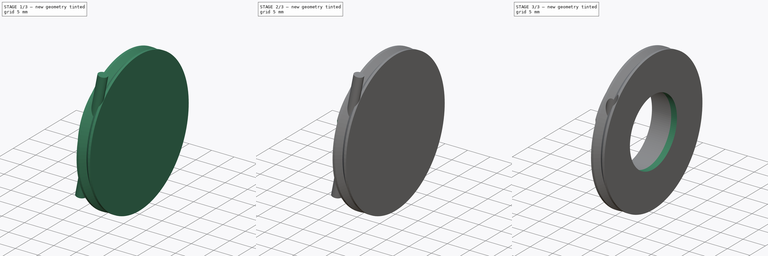
[diagram: build sequence overview — one tinted view per stage of 3, left to right]
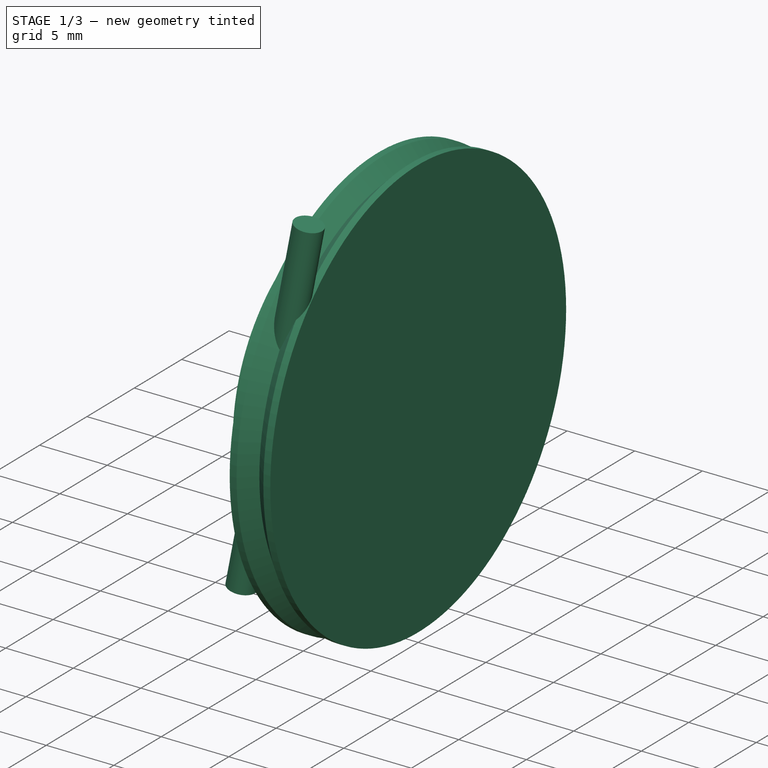
[diagram: stage 1 of 3 — iso view after this stage's code; geometry added in this stage tinted green]
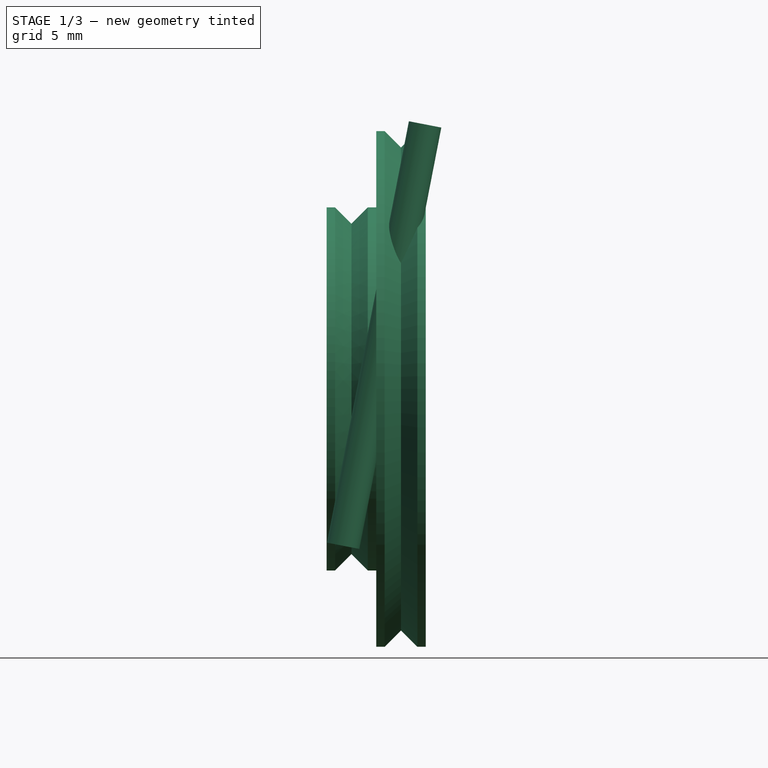
[diagram: stage 1 of 3 — front view after this stage's code; geometry added in this stage tinted green]
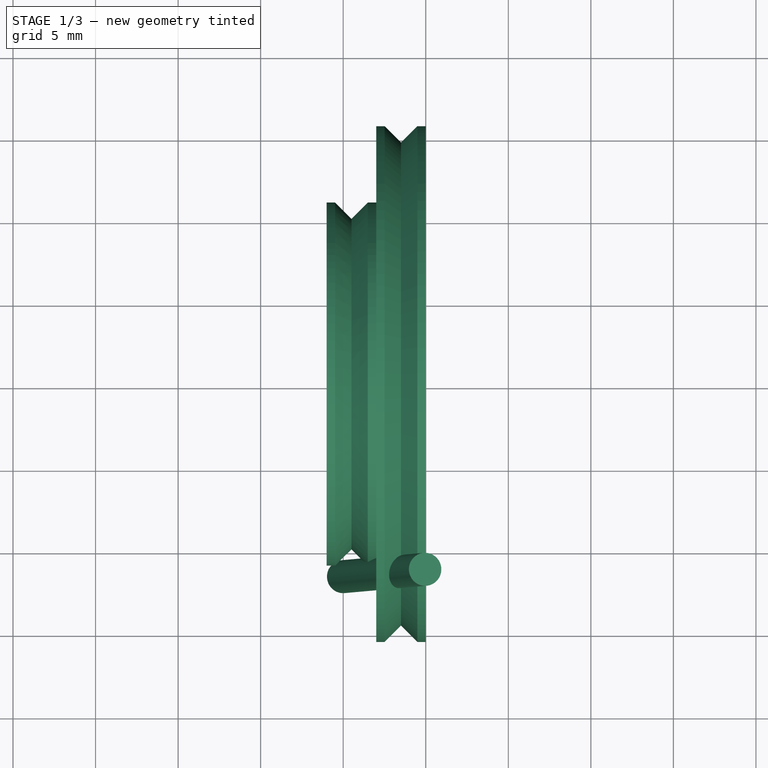
[diagram: stage 1 of 3 — top view after this stage's code; geometry added in this stage tinted green]
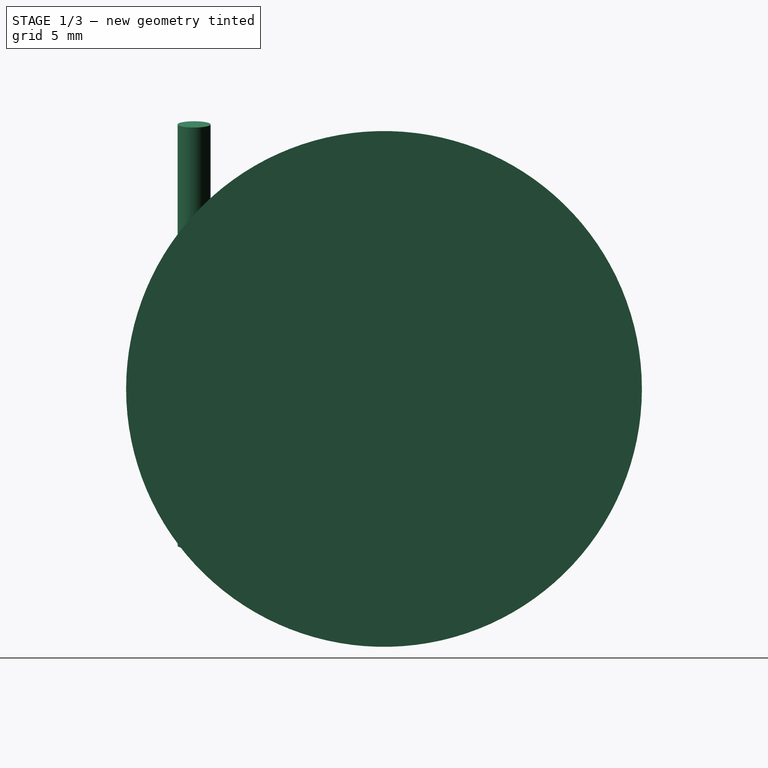
[diagram: stage 1 of 3 — right view after this stage's code; geometry added in this stage tinted green]
FCSTD DOCUMENT  (FreeCAD 0.16R)
Label: hackpan01
License: All rights reserved
LicenseURL: http://en.wikipedia.org/wiki/All_rights_reserved
objects: Sketcher::SketchObject×4, PartDesign::Pocket×3, PartDesign::Revolution×1, Part::Cylinder×1, Part::Cut×1
note: 14 computed .brp shape members not serialized (recipe doc carries the construction recipe); baked Part::Feature solids carry a one-line shape summary decoded from their .brp

FEATURE [Sketcher::SketchObject] Sketch
  sketch-geometry (12):
    g0: LineSegment StartX=-6 StartY=0 StartZ=0 EndX=-6 EndY=11 EndZ=0
    g1: LineSegment StartX=-6 StartY=11 StartZ=0 EndX=-5.48995 EndY=11 EndZ=0
    g2: LineSegment StartX=-5.48995 StartY=11 StartZ=0 EndX=-4.5 EndY=10.0101 EndZ=0
    g3: LineSegment StartX=-4.5 StartY=10.0101 StartZ=0 EndX=-3.51005 EndY=11 EndZ=0
    g4: LineSegment StartX=-3.51005 StartY=11 StartZ=0 EndX=-3 EndY=11 EndZ=0
    g5: LineSegment StartX=-3 StartY=11 StartZ=0 EndX=-3 EndY=15.62 EndZ=0
    g6: LineSegment StartX=-3 StartY=15.62 StartZ=0 EndX=-2.48995 EndY=15.62 EndZ=0
    g7: LineSegment StartX=-2.48995 StartY=15.62 StartZ=0 EndX=-1.5 EndY=14.6301 EndZ=0
    g8: LineSegment StartX=-1.5 StartY=14.6301 StartZ=0 EndX=-0.510051 EndY=15.62 EndZ=0
    g9: LineSegment StartX=-0.510051 StartY=15.62 StartZ=0 EndX=0 EndY=15.62 EndZ=0
    g10: LineSegment StartX=0 StartY=15.62 StartZ=0 EndX=0 EndY=0 EndZ=0
    g11: LineSegment StartX=0 StartY=0 StartZ=0 EndX=-6 EndY=0 EndZ=0
  constraints (36):
    c: PointOnObject(g0,g-1)
    c: Vertical(g0)
    c: Coincident(g0,g1)
    c: Coincident(g1,g2)
    c: Coincident(g2,g3)
    c: Coincident(g3,g4)
    c: Horizontal(g4)
    c: Coincident(g4,g5)
    c: Coincident(g5,g6)
    c: Coincident(g6,g7)
    c: Coincident(g7,g8)
    c: Coincident(g8,g9)
    c: Coincident(g9,g10)
    c: PointOnObject(g10,g-1)
    c: Coincident(g10,g11)
    c: Coincident(g11,g0)
    c: Vertical(g10)
    c: Equal(g1,g4)
    c: Equal(g4,g6)
    c: Equal(g6,g9)
    c: Vertical(g5)
    c: Equal(g2,g3)
    c: Equal(g3,g7)
    c: Equal(g7,g8)
    c: Horizontal(g1)
    c: Horizontal(g6)
    c: Angle(g3) = 0.785398
    c: Angle(g8) = 0.785398
    c: Horizontal(g9)
    c: Angle(g2) = -0.785398
    c: Angle(g7) = -0.785398
    c: Distance(g2) = 1.4
    c: Distance(g11) = 6
    c: Coincident(g10,g-1)
    c: Distance(g10) = 15.62
    c: Distance(g0) = 11
FEATURE [PartDesign::Revolution] Revolution
  Angle = 360
  Axis = (1,0,0)
  Base = (0,0,0)
  ReferenceAxis = -> Sketch [H_Axis]
  Sketch = -> Sketch
FEATURE [Part::Cylinder] Cylinder
  Angle = 360
  Height = 26
  Placement = pos=(-5,-11.5,-9.5) rot=(0,1,0;0.191986rad)
  Radius = 1
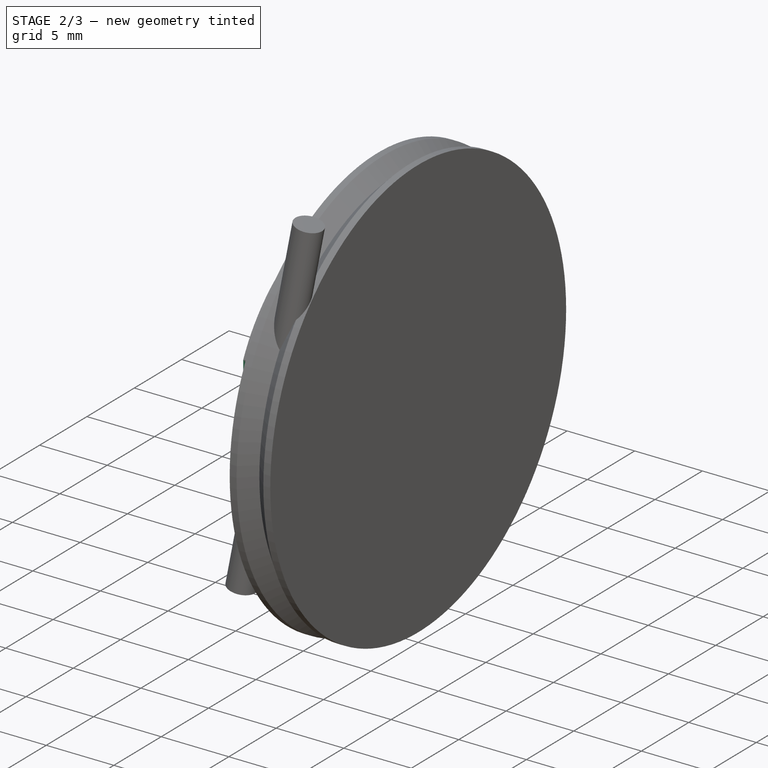
[diagram: stage 2 of 3 — iso view after this stage's code; geometry added in this stage tinted green]
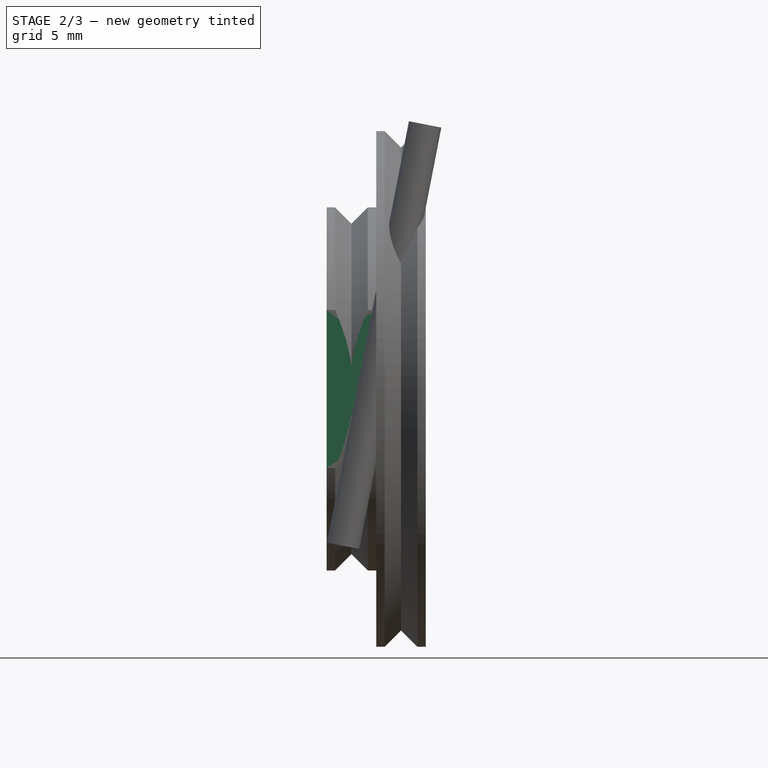
[diagram: stage 2 of 3 — front view after this stage's code; geometry added in this stage tinted green]
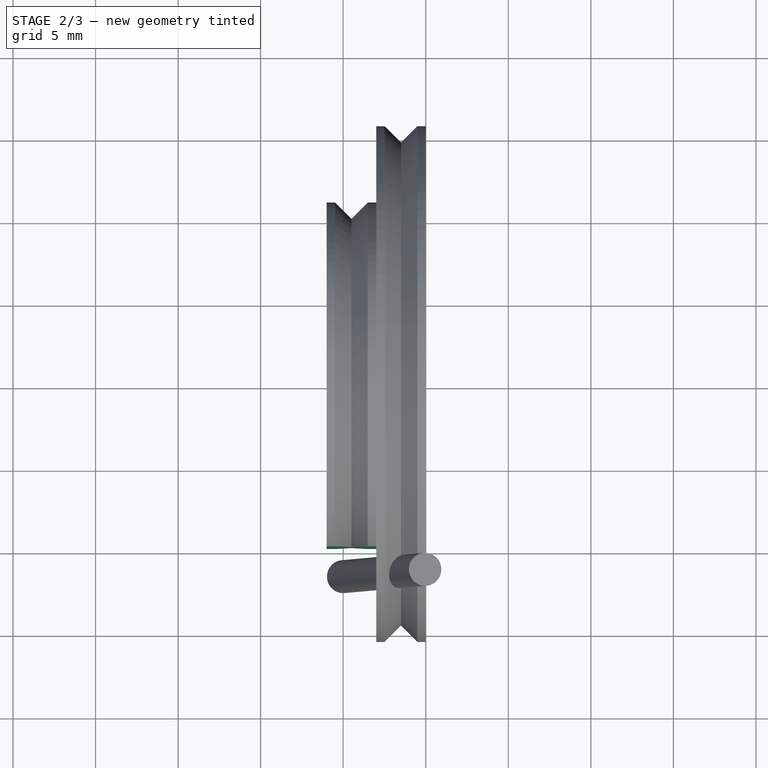
[diagram: stage 2 of 3 — top view after this stage's code; geometry added in this stage tinted green]
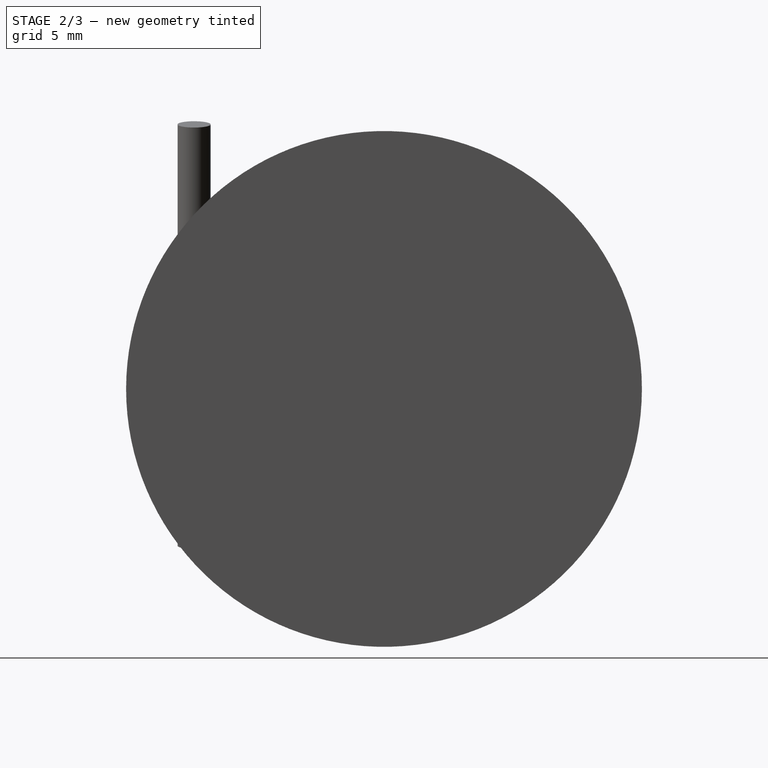
[diagram: stage 2 of 3 — right view after this stage's code; geometry added in this stage tinted green]
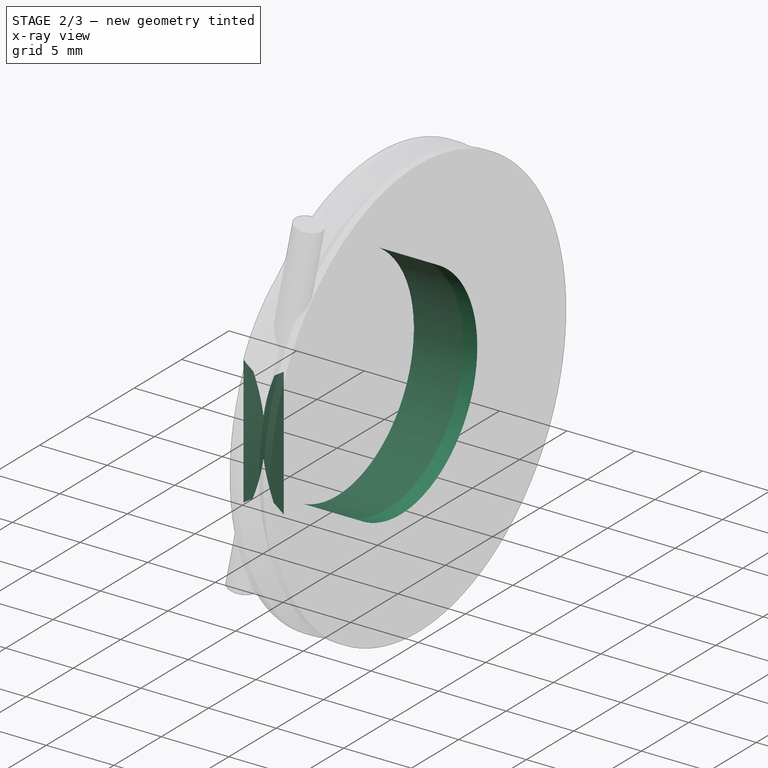
[diagram: stage 2 of 3 — x-ray composite at the iso view; earlier geometry ghosted, this stage's added geometry solid]
FEATURE [Sketcher::SketchObject] Sketch001
  Placement = pos=(-6,0,0) rot=(0.57735,-0.57735,-0.57735;2.0944rad)
  Support = -> Revolution [Face1]
  sketch-geometry (4):
    g0: LineSegment StartX=9.90768 StartY=5.08053 StartZ=0 EndX=11.7687 EndY=5.08053 EndZ=0
    g1: LineSegment StartX=11.7687 StartY=5.08053 StartZ=0 EndX=11.7687 EndY=-5.46531 EndZ=0
    g2: LineSegment StartX=11.7687 StartY=-5.46531 StartZ=0 EndX=9.90768 EndY=-5.46531 EndZ=0
    g3: LineSegment StartX=9.90768 StartY=-5.46531 StartZ=0 EndX=9.90768 EndY=5.08053 EndZ=0
  constraints (8):
    c: Coincident(g0,g1)
    c: Coincident(g1,g2)
    c: Coincident(g2,g3)
    c: Coincident(g3,g0)
    c: Horizontal(g0)
    c: Horizontal(g2)
    c: Vertical(g1)
    c: Vertical(g3)
FEATURE [PartDesign::Pocket] Pocket
  Length = 3
  Sketch = -> Sketch001
  Type = 0
FEATURE [Sketcher::SketchObject] Sketch002
  Placement = pos=(-6,0,0) rot=(0.57735,-0.57735,-0.57735;2.0944rad)
  Support = -> Pocket [Face1]
  sketch-geometry (1):
    g0: Circle CenterX=0 CenterY=0 CenterZ=0 NormalX=0 NormalY=0 NormalZ=1 Radius=8.1
  constraints (2):
    c: Radius(g0) = 8.1
    c: Coincident(g0,g-1)
FEATURE [PartDesign::Pocket] Pocket001
  Length = 4.7
  Sketch = -> Sketch002
  Type = 0
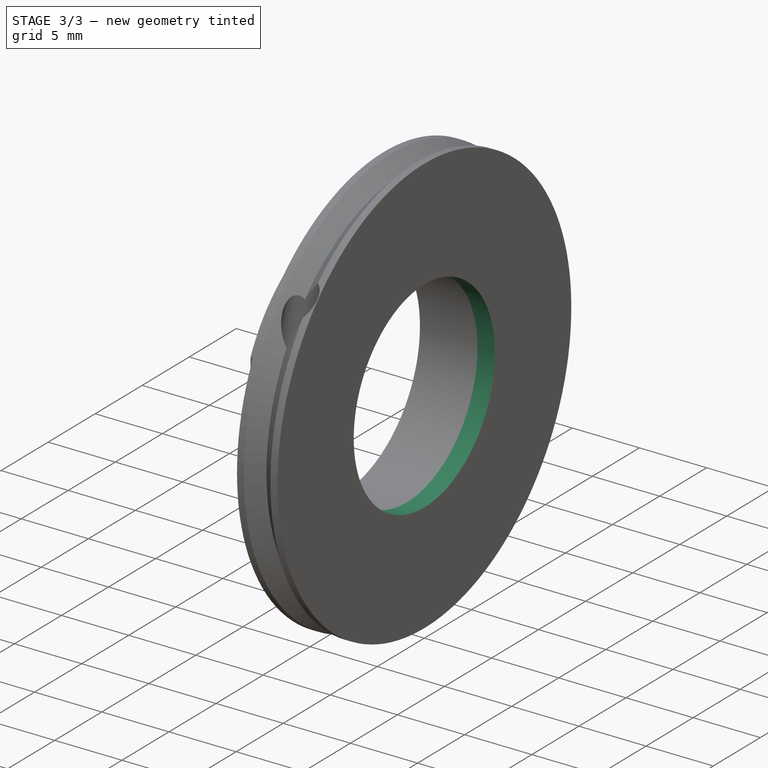
[diagram: stage 3 of 3 — iso view after this stage's code; geometry added in this stage tinted green]
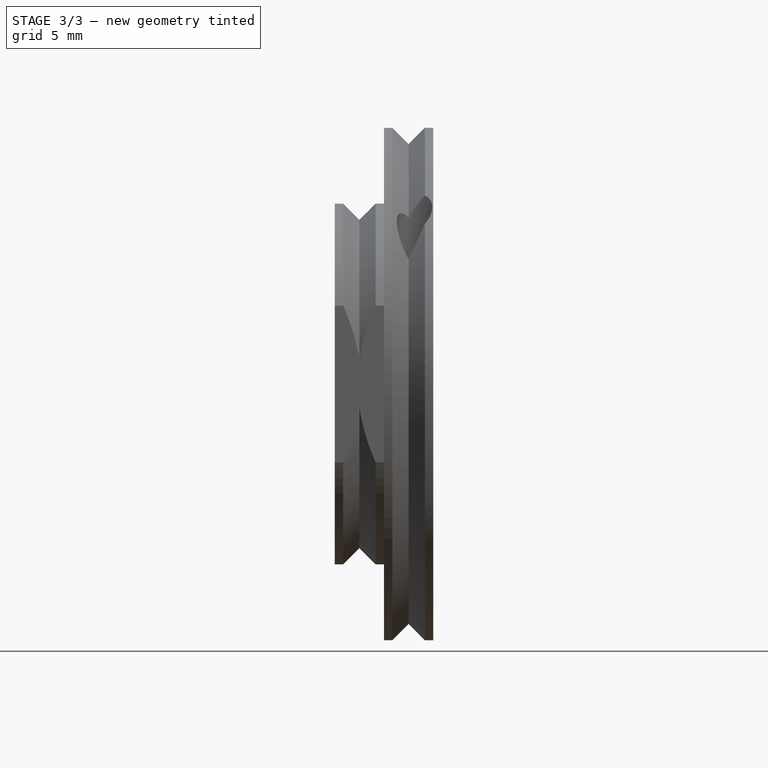
[diagram: stage 3 of 3 — front view after this stage's code; geometry added in this stage tinted green]
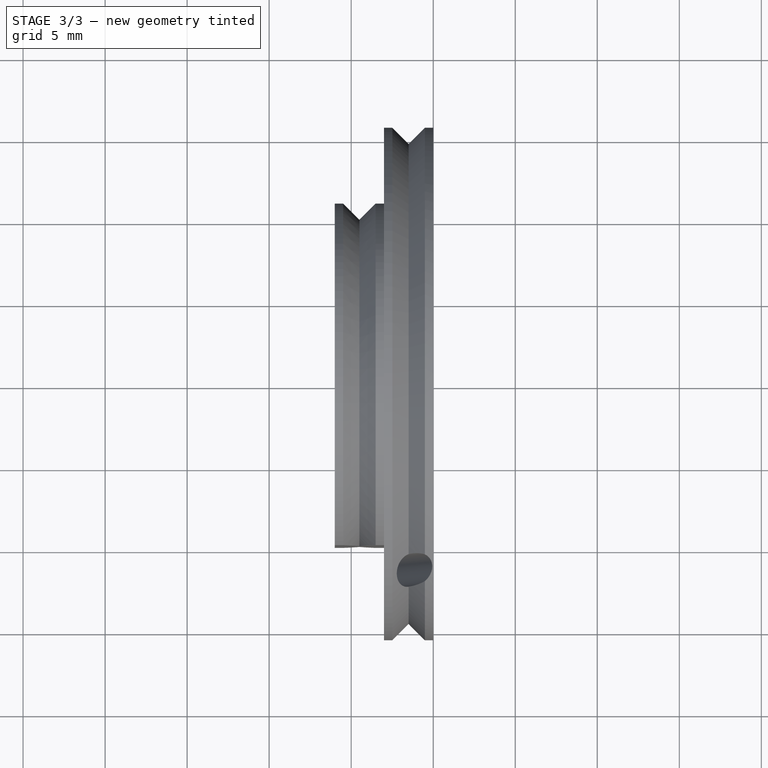
[diagram: stage 3 of 3 — top view after this stage's code; geometry added in this stage tinted green]
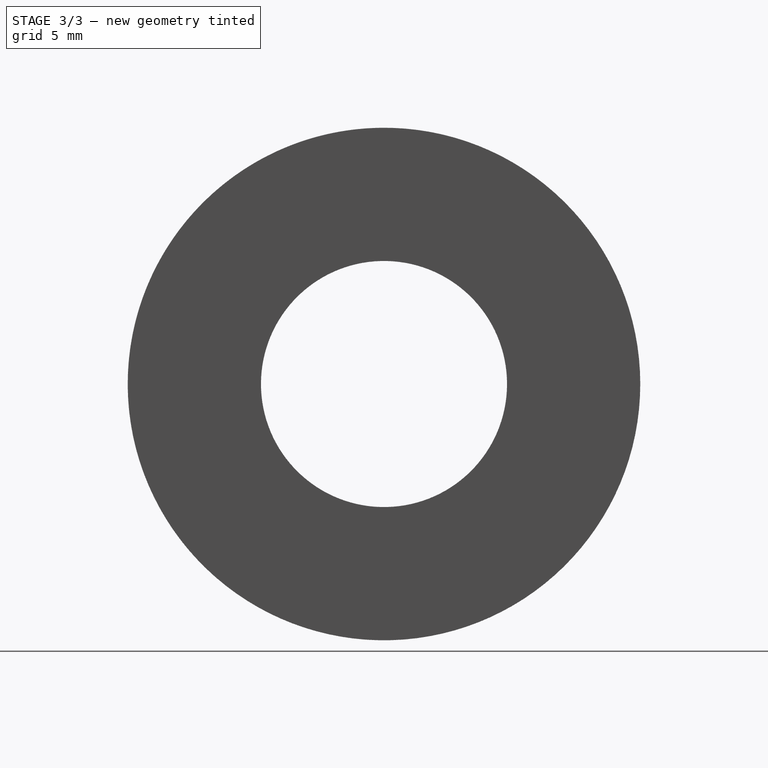
[diagram: stage 3 of 3 — right view after this stage's code; geometry added in this stage tinted green]
FEATURE [Sketcher::SketchObject] Sketch003
  Placement = pos=(-1.3,0,0) rot=(0.57735,-0.57735,-0.57735;2.0944rad)
  Support = -> Pocket001 [Face13]
  sketch-geometry (1):
    g0: Circle CenterX=0 CenterY=0 CenterZ=0 NormalX=0 NormalY=0 NormalZ=1 Radius=7.5
  constraints (2):
    c: Coincident(g0,g-1)
    c: Radius(g0) = 7.5
FEATURE [PartDesign::Pocket] Pocket002
  Length = 5
  Sketch = -> Sketch003
  Type = 0
FEATURE [Part::Cut] Cut
  Base = -> Pocket002
  Tool = -> Cylinder
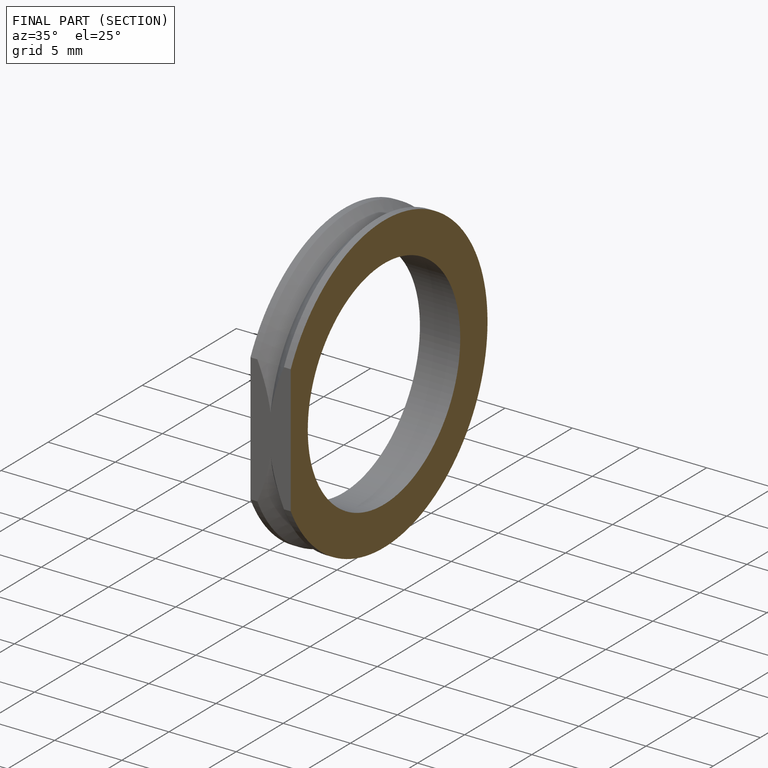
[diagram: finished part — half-section view (interior)]
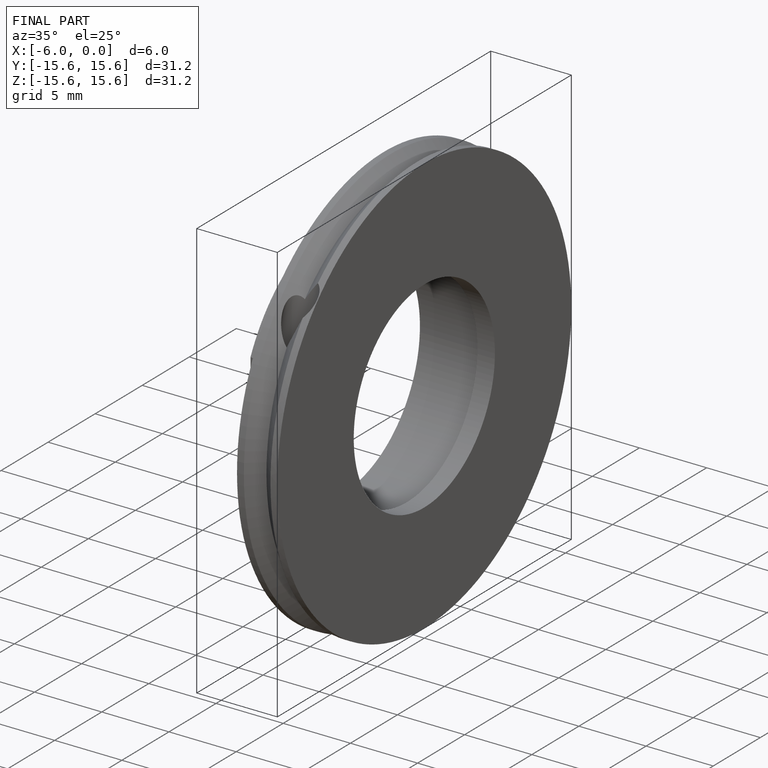
[diagram: finished part — iso view with bounding-box wireframe]
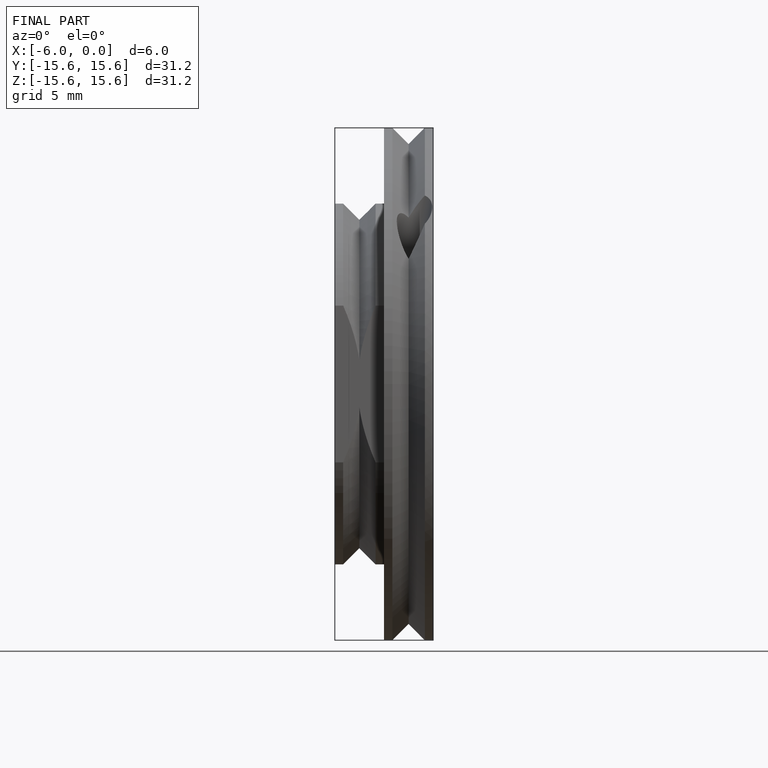
[diagram: finished part — front view with bounding-box wireframe]
